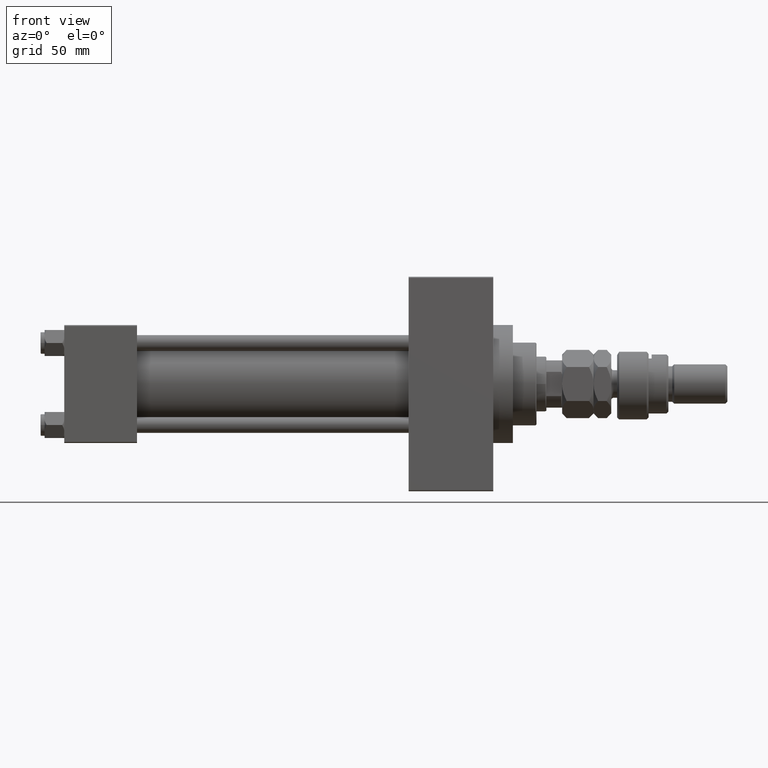
[diagram: clean part render]
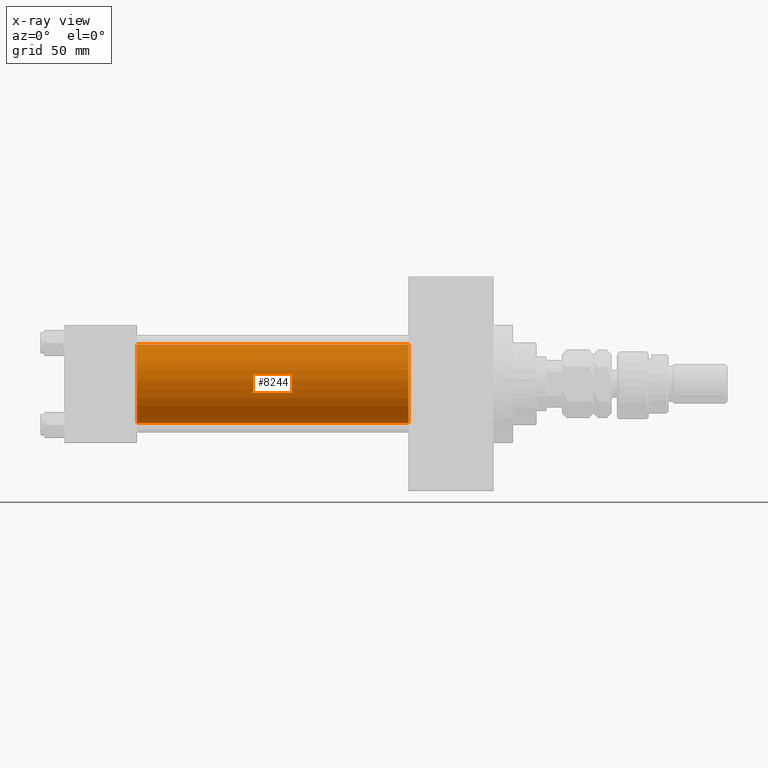
[diagram: x-ray — body ghosted, one internal face saturated and labeled with its STEP entity id]
A machine part, front view, then the same camera in x-ray: the body is ghosted and one INTERNAL B-rep face — a face not visible from any outside direction — is saturated and labeled: STEP entity #8244.
In plain terms, the highlighted cylindrical surface (partial cylindrical patch) has radius 20 mm, axis along (-1, -0, -0).
Its self-contained STEP definition (entity closure, byte-faithful):
#441 = ORIENTED_EDGE ( 'NONE', *, *, #30758, .F. ) ;
#3890 = DIRECTION ( 'NONE',  ( 1.000000000000000000, 0.000000000000000000, 0.000000000000000000 ) ) ;
#4269 = LINE ( 'NONE', #24401, #18488 ) ;
#8244 = ADVANCED_FACE ( 'NONE', ( #13089 ), #16536, .F. ) ;
#8847 = DIRECTION ( 'NONE',  ( 0.000000000000000000, 0.000000000000000000, 1.000000000000000000 ) ) ;
#9792 = VERTEX_POINT ( 'NONE', #18860 ) ;
#10599 = CARTESIAN_POINT ( 'NONE',  ( 37.00000000000000000, -1.527916156705042519E-16, -20.00000000000000000 ) ) ;
#12803 = ORIENTED_EDGE ( 'NONE', *, *, #46141, .T. ) ;
#13089 = FACE_OUTER_BOUND ( 'NONE', #28504, .T. ) ;
#14289 = AXIS2_PLACEMENT_3D ( 'NONE', #44982, #3890, #44713 ) ;
#16105 = VERTEX_POINT ( 'NONE', #39237 ) ;
#16536 = CYLINDRICAL_SURFACE ( 'NONE', #29908, 20.00000000000000000 ) ;
#18488 = VECTOR ( 'NONE', #20449, 1000.000000000000000 ) ;
#18860 = CARTESIAN_POINT ( 'NONE',  ( 37.00000000000000000, -2.602085213965210642E-15, 20.00000000000000000 ) ) ;
#20449 = DIRECTION ( 'NONE',  ( -1.000000000000000000, -0.000000000000000000, -0.000000000000000000 ) ) ;
#20708 = CARTESIAN_POINT ( 'NONE',  ( 175.0000000000000284, -1.527916156705042519E-16, -20.00000000000000000 ) ) ;
#24401 = CARTESIAN_POINT ( 'NONE',  ( 175.0000000000000284, -1.527916156705042519E-16, -20.00000000000000000 ) ) ;
#25003 = CARTESIAN_POINT ( 'NONE',  ( 175.0000000000000284, -2.602085213965210642E-15, 20.00000000000000000 ) ) ;
#25918 = VECTOR ( 'NONE', #28990, 1000.000000000000000 ) ;
#27382 = DIRECTION ( 'NONE',  ( 1.000000000000000000, 0.000000000000000000, 0.000000000000000000 ) ) ;
#28410 = CARTESIAN_POINT ( 'NONE',  ( 175.0000000000000284, -2.602085213965210642E-15, 0.000000000000000000 ) ) ;
#28504 = EDGE_LOOP ( 'NONE', ( #12803, #30918, #441, #51577 ) ) ;
#28990 = DIRECTION ( 'NONE',  ( -1.000000000000000000, -0.000000000000000000, -0.000000000000000000 ) ) ;
#29908 = AXIS2_PLACEMENT_3D ( 'NONE', #40935, #45446, #8847 ) ;
#30396 = EDGE_CURVE ( 'NONE', #30548, #34900, #4269, .T. ) ;
#30548 = VERTEX_POINT ( 'NONE', #20708 ) ;
#30758 = EDGE_CURVE ( 'NONE', #9792, #34900, #35409, .T. ) ;
#30918 = ORIENTED_EDGE ( 'NONE', *, *, #30396, .T. ) ;
#31052 = CIRCLE ( 'NONE', #41240, 20.00000000000000000 ) ;
#34900 = VERTEX_POINT ( 'NONE', #10599 ) ;
#35409 = CIRCLE ( 'NONE', #14289, 20.00000000000000000 ) ;
#39237 = CARTESIAN_POINT ( 'NONE',  ( 175.0000000000000284, -2.602085213965210642E-15, 20.00000000000000000 ) ) ;
#40687 = EDGE_CURVE ( 'NONE', #16105, #9792, #45181, .T. ) ;
#40935 = CARTESIAN_POINT ( 'NONE',  ( 175.0000000000000284, -2.602085213965210642E-15, 0.000000000000000000 ) ) ;
#41240 = AXIS2_PLACEMENT_3D ( 'NONE', #28410, #27382, #47571 ) ;
#44713 = DIRECTION ( 'NONE',  ( 0.000000000000000000, 0.000000000000000000, -1.000000000000000000 ) ) ;
#44982 = CARTESIAN_POINT ( 'NONE',  ( 37.00000000000000000, -2.602085213965210642E-15, 0.000000000000000000 ) ) ;
#45181 = LINE ( 'NONE', #25003, #25918 ) ;
#45446 = DIRECTION ( 'NONE',  ( -1.000000000000000000, -0.000000000000000000, -0.000000000000000000 ) ) ;
#46141 = EDGE_CURVE ( 'NONE', #16105, #30548, #31052, .T. ) ;
#47571 = DIRECTION ( 'NONE',  ( 0.000000000000000000, 0.000000000000000000, -1.000000000000000000 ) ) ;
#51577 = ORIENTED_EDGE ( 'NONE', *, *, #40687, .F. ) ;